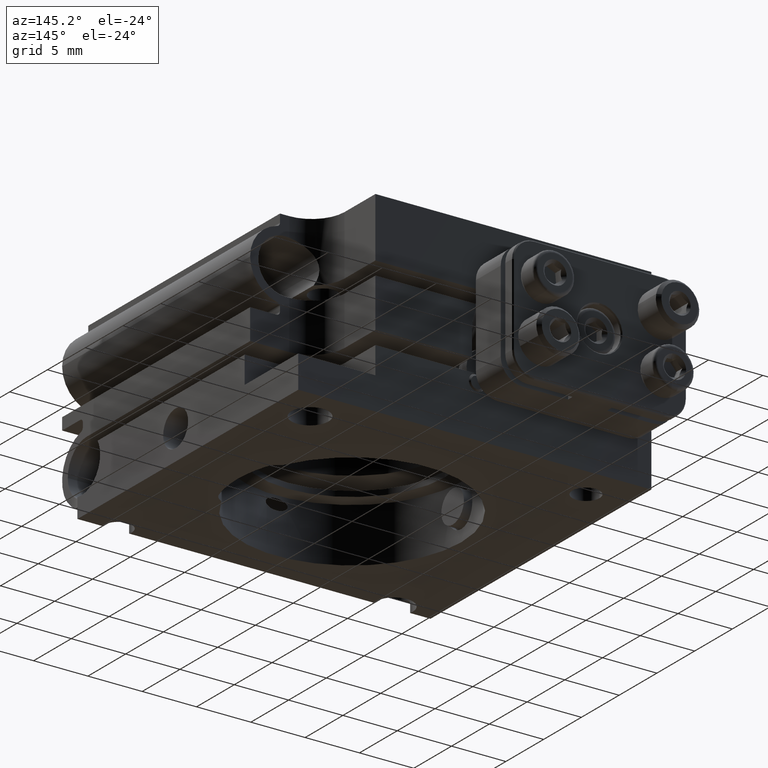
[diagram: clean part render]
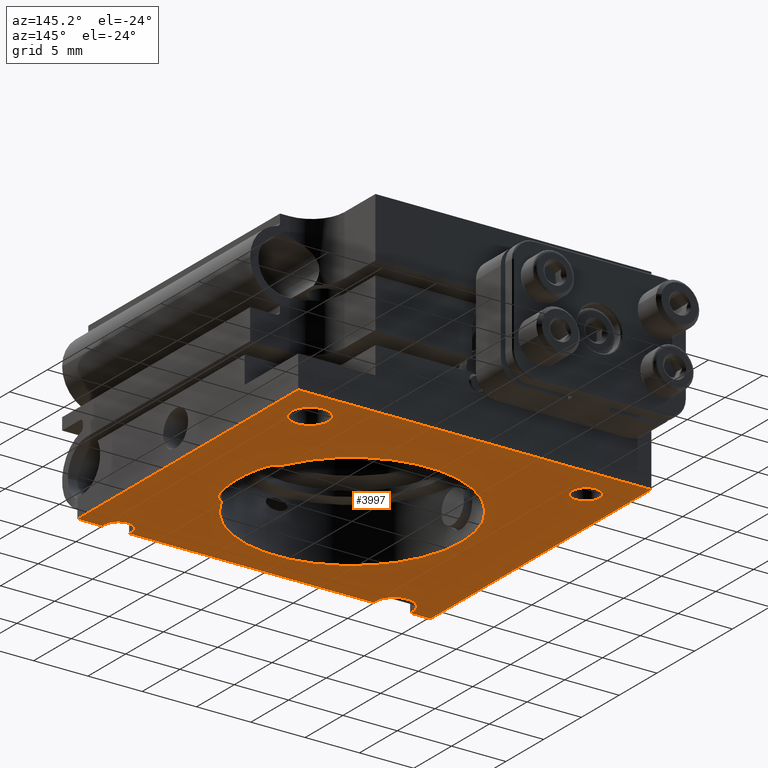
[diagram: same view with one face highlighted and labeled with its STEP entity id]
A machine part, auxiliary view. The second image highlights one B-rep face of the part: STEP entity #3997.
In plain terms, the highlighted planar face has unit normal (-0, 0, 1).
Its self-contained STEP definition (entity closure, byte-faithful):
#48 = EDGE_CURVE ( 'NONE', #1171, #9433, #6801, .T. ) ;
#95 = AXIS2_PLACEMENT_3D ( 'NONE', #8231, #8353, #9204 ) ;
#122 = DIRECTION ( 'NONE',  ( 1.000000000000000000, 1.387778780781460072E-15, 0.000000000000000000 ) ) ;
#125 = AXIS2_PLACEMENT_3D ( 'NONE', #1421, #1298, #8334 ) ;
#138 = LINE ( 'NONE', #7119, #9813 ) ;
#145 = ORIENTED_EDGE ( 'NONE', *, *, #48, .T. ) ;
#208 = EDGE_CURVE ( 'NONE', #5314, #1324, #3505, .T. ) ;
#215 = EDGE_CURVE ( 'NONE', #10657, #3730, #1318, .T. ) ;
#269 = EDGE_CURVE ( 'NONE', #9433, #5703, #4048, .T. ) ;
#291 = CARTESIAN_POINT ( 'NONE',  ( -11.02667994693188547, -13.00000000000002487, -9.000000000000003553 ) ) ;
#414 = CARTESIAN_POINT ( 'NONE',  ( 9.122645823729028436, -4.216613946616318387, -9.000000000000000000 ) ) ;
#517 = VERTEX_POINT ( 'NONE', #10334 ) ;
#656 = CARTESIAN_POINT ( 'NONE',  ( 11.44999999999998863, -12.69999999999997264, -9.000000000000001776 ) ) ;
#760 = CARTESIAN_POINT ( 'NONE',  ( 10.55000000000000071, 1.662281423620015567E-14, -9.000000000000000000 ) ) ;
#762 = FACE_BOUND ( 'NONE', #10475, .T. ) ;
#860 = EDGE_LOOP ( 'NONE', ( #6944, #2074 ) ) ;
#1009 = EDGE_CURVE ( 'NONE', #5327, #5314, #2379, .T. ) ;
#1013 = LINE ( 'NONE', #7764, #2143 ) ;
#1035 = CARTESIAN_POINT ( 'NONE',  ( 9.345510765437564871, -3.982954749063875699, -9.000000000000001776 ) ) ;
#1056 = DIRECTION ( 'NONE',  ( -9.244463733058804623E-33, 5.551115123125772225E-17, 1.000000000000000000 ) ) ;
#1171 = VERTEX_POINT ( 'NONE', #414 ) ;
#1232 = CARTESIAN_POINT ( 'NONE',  ( 9.122645823729026660, 4.216613946616343256, -9.000000000000000000 ) ) ;
#1298 = DIRECTION ( 'NONE',  ( 9.244463733058804623E-33, -5.551115123125772225E-17, -1.000000000000000000 ) ) ;
#1318 = CIRCLE ( 'NONE', #10823, 1.699999999999994849 ) ;
#1324 = VERTEX_POINT ( 'NONE', #2358 ) ;
#1345 = DIRECTION ( 'NONE',  ( 1.000000000000000000, 1.387778780781460072E-15, 0.000000000000000000 ) ) ;
#1355 = CARTESIAN_POINT ( 'NONE',  ( -16.24999999999994316, 16.24999999999995026, -9.000000000000001776 ) ) ;
#1385 = AXIS2_PLACEMENT_3D ( 'NONE', #9399, #1578, #5039 ) ;
#1421 = CARTESIAN_POINT ( 'NONE',  ( 12.69999999999997442, -12.69999999999997087, -9.000000000000001776 ) ) ;
#1537 = CIRCLE ( 'NONE', #5910, 10.55000000000000071 ) ;
#1578 = DIRECTION ( 'NONE',  ( -9.244463733058804623E-33, 5.551115123125772225E-17, 1.000000000000000000 ) ) ;
#1603 = EDGE_CURVE ( 'NONE', #8834, #9404, #1668, .T. ) ;
#1668 = CIRCLE ( 'NONE', #9318, 1.499999999999999556 ) ;
#1671 = VERTEX_POINT ( 'NONE', #10466 ) ;
#1686 = DIRECTION ( 'NONE',  ( -9.244463733058804623E-33, 5.551115123125772225E-17, 1.000000000000000000 ) ) ;
#1733 = CIRCLE ( 'NONE', #7769, 1.249999999999987121 ) ;
#1782 = ORIENTED_EDGE ( 'NONE', *, *, #1009, .T. ) ;
#1892 = EDGE_CURVE ( 'NONE', #7168, #1671, #4025, .T. ) ;
#1921 = DIRECTION ( 'NONE',  ( -9.244463733058804623E-33, 5.551115123125772225E-17, 1.000000000000000000 ) ) ;
#1990 = CARTESIAN_POINT ( 'NONE',  ( 9.345510765437564871, 3.982954749063900568, -9.000000000000000000 ) ) ;
#2017 = ORIENTED_EDGE ( 'NONE', *, *, #3426, .T. ) ;
#2041 = DIRECTION ( 'NONE',  ( -1.000000000000000000, -2.040851148208014704E-15, 0.000000000000000000 ) ) ;
#2074 = ORIENTED_EDGE ( 'NONE', *, *, #3501, .F. ) ;
#2084 = DIRECTION ( 'NONE',  ( -9.244463733058804623E-33, 5.551115123125772225E-17, 1.000000000000000000 ) ) ;
#2112 = EDGE_CURVE ( 'NONE', #1324, #10735, #4940, .T. ) ;
#2143 = VECTOR ( 'NONE', #3623, 1000.000000000000000 ) ;
#2190 = ORIENTED_EDGE ( 'NONE', *, *, #9135, .F. ) ;
#2254 = AXIS2_PLACEMENT_3D ( 'NONE', #4184, #1686, #6835 ) ;
#2263 = AXIS2_PLACEMENT_3D ( 'NONE', #2531, #6021, #6078 ) ;
#2358 = CARTESIAN_POINT ( 'NONE',  ( -14.40000000000002522, -12.70000000000002771, -9.000000000000003553 ) ) ;
#2373 = DIRECTION ( 'NONE',  ( 1.000000000000000000, 1.387778780781460072E-15, 0.000000000000000000 ) ) ;
#2379 = CIRCLE ( 'NONE', #6403, 1.699999999999994849 ) ;
#2459 = EDGE_CURVE ( 'NONE', #11219, #1171, #8899, .T. ) ;
#2488 = EDGE_CURVE ( 'NONE', #3730, #10657, #6715, .T. ) ;
#2502 = CARTESIAN_POINT ( 'NONE',  ( 13.91346610995111988, -12.99999999999997335, -9.000000000000001776 ) ) ;
#2505 = VERTEX_POINT ( 'NONE', #3664 ) ;
#2531 = CARTESIAN_POINT ( 'NONE',  ( 8.320017359752855601E-32, -4.996003610813203446E-16, -9.000000000000000000 ) ) ;
#2579 = ORIENTED_EDGE ( 'NONE', *, *, #11060, .F. ) ;
#2587 = ORIENTED_EDGE ( 'NONE', *, *, #5469, .F. ) ;
#2596 = AXIS2_PLACEMENT_3D ( 'NONE', #8163, #5354, #7207 ) ;
#2694 = ORIENTED_EDGE ( 'NONE', *, *, #8960, .F. ) ;
#2796 = VERTEX_POINT ( 'NONE', #760 ) ;
#2798 = CIRCLE ( 'NONE', #5355, 1.249999999999987121 ) ;
#2833 = CARTESIAN_POINT ( 'NONE',  ( -12.70000000000003126, -12.70000000000002416, -9.000000000000003553 ) ) ;
#2837 = CARTESIAN_POINT ( 'NONE',  ( 8.320017359752855601E-32, -4.996003610813203446E-16, -9.000000000000000000 ) ) ;
#2880 = CARTESIAN_POINT ( 'NONE',  ( 11.00000000000003197, 12.70000000000002238, -9.000000000000003553 ) ) ;
#2904 = DIRECTION ( 'NONE',  ( -1.000000000000000000, -2.040851148208014704E-15, 0.000000000000000000 ) ) ;
#2942 = CARTESIAN_POINT ( 'NONE',  ( -12.69999999999997087, 12.69999999999997442, -9.000000000000001776 ) ) ;
#3119 = CARTESIAN_POINT ( 'NONE',  ( 12.69999999999997442, -12.69999999999997087, -9.000000000000001776 ) ) ;
#3176 = CIRCLE ( 'NONE', #7953, 1.249999999999987121 ) ;
#3203 = ORIENTED_EDGE ( 'NONE', *, *, #2112, .T. ) ;
#3217 = ORIENTED_EDGE ( 'NONE', *, *, #215, .T. ) ;
#3269 = CARTESIAN_POINT ( 'NONE',  ( 11.48653389004883074, -12.99999999999997335, -9.000000000000001776 ) ) ;
#3287 = ORIENTED_EDGE ( 'NONE', *, *, #208, .T. ) ;
#3383 = PLANE ( 'NONE',  #2263 ) ;
#3419 = CARTESIAN_POINT ( 'NONE',  ( 14.40000000000002167, 12.70000000000002771, -9.000000000000003553 ) ) ;
#3426 = EDGE_CURVE ( 'NONE', #2796, #8834, #1537, .T. ) ;
#3501 = EDGE_CURVE ( 'NONE', #7402, #2505, #2798, .T. ) ;
#3505 = CIRCLE ( 'NONE', #6433, 1.699999999999994849 ) ;
#3551 = CIRCLE ( 'NONE', #95, 0.5000000000000004441 ) ;
#3597 = EDGE_CURVE ( 'NONE', #5703, #2796, #7200, .T. ) ;
#3623 = DIRECTION ( 'NONE',  ( 1.000000000000000000, 1.609823385706476984E-15, -8.011868568650903338E-32 ) ) ;
#3664 = CARTESIAN_POINT ( 'NONE',  ( -11.44999999999998508, 12.69999999999997620, -9.000000000000001776 ) ) ;
#3730 = VERTEX_POINT ( 'NONE', #2880 ) ;
#3855 = CARTESIAN_POINT ( 'NONE',  ( -16.24999999999994316, 16.24999999999995026, -9.000000000000001776 ) ) ;
#3888 = CARTESIAN_POINT ( 'NONE',  ( 10.08663544534702972, 3.092294519069786585, -9.000000000000000000 ) ) ;
#3965 = VERTEX_POINT ( 'NONE', #656 ) ;
#3966 = ORIENTED_EDGE ( 'NONE', *, *, #2459, .T. ) ;
#3997 = ADVANCED_FACE ( 'NONE', ( #762, #9326, #4227, #6711 ), #3383, .F. ) ;
#4006 = EDGE_LOOP ( 'NONE', ( #6061, #1782, #3287, #3203, #2579, #9684, #2587, #2694, #2190, #5928, #6101, #10911 ) ) ;
#4025 = LINE ( 'NONE', #3855, #7519 ) ;
#4048 = CIRCLE ( 'NONE', #2596, 1.499999999999999556 ) ;
#4098 = DIRECTION ( 'NONE',  ( -1.000000000000000000, -1.734723475976807686E-15, 0.000000000000000000 ) ) ;
#4148 = CARTESIAN_POINT ( 'NONE',  ( 16.25000000000006040, 16.25000000000005684, -9.000000000000001776 ) ) ;
#4184 = CARTESIAN_POINT ( 'NONE',  ( 8.320017359752855601E-32, -4.996003610813203446E-16, -9.000000000000000000 ) ) ;
#4214 = CARTESIAN_POINT ( 'NONE',  ( 9.576508800033952440, -4.426395735005190346, -9.000000000000001776 ) ) ;
#4227 = FACE_BOUND ( 'NONE', #6626, .T. ) ;
#4255 = EDGE_CURVE ( 'NONE', #9404, #11219, #3551, .T. ) ;
#4397 = EDGE_CURVE ( 'NONE', #11336, #4697, #3176, .T. ) ;
#4486 = DIRECTION ( 'NONE',  ( -1.000000000000000000, -1.609823385706476786E-15, 0.000000000000000000 ) ) ;
#4656 = VECTOR ( 'NONE', #5243, 1000.000000000000000 ) ;
#4697 = VERTEX_POINT ( 'NONE', #2502 ) ;
#4710 = EDGE_CURVE ( 'NONE', #5899, #3965, #1733, .T. ) ;
#4727 = VERTEX_POINT ( 'NONE', #4148 ) ;
#4927 = DIRECTION ( 'NONE',  ( 9.244463733058804623E-33, -5.551115123125772225E-17, -1.000000000000000000 ) ) ;
#4940 = CIRCLE ( 'NONE', #9332, 1.699999999999994849 ) ;
#5039 = DIRECTION ( 'NONE',  ( -1.000000000000000000, -2.040851148208014704E-15, 0.000000000000000000 ) ) ;
#5183 = CARTESIAN_POINT ( 'NONE',  ( 12.69999999999997442, -12.69999999999997087, -9.000000000000001776 ) ) ;
#5243 = DIRECTION ( 'NONE',  ( 1.000000000000000000, 1.609823385706476984E-15, -8.011868568650903338E-32 ) ) ;
#5246 = DIRECTION ( 'NONE',  ( 9.244463733058804623E-33, -5.551115123125772225E-17, -1.000000000000000000 ) ) ;
#5314 = VERTEX_POINT ( 'NONE', #10763 ) ;
#5327 = VERTEX_POINT ( 'NONE', #291 ) ;
#5354 = DIRECTION ( 'NONE',  ( -9.244463733058804623E-33, 5.551115123125772225E-17, 1.000000000000000000 ) ) ;
#5355 = AXIS2_PLACEMENT_3D ( 'NONE', #6666, #4927, #1345 ) ;
#5469 = EDGE_CURVE ( 'NONE', #4727, #7168, #9996, .T. ) ;
#5582 = CARTESIAN_POINT ( 'NONE',  ( 16.25000000000006040, 16.25000000000005684, -9.000000000000001776 ) ) ;
#5632 = DIRECTION ( 'NONE',  ( -1.831867990631508292E-15, -1.000000000000000000, 5.551115123125782702E-17 ) ) ;
#5703 = VERTEX_POINT ( 'NONE', #7347 ) ;
#5719 = VECTOR ( 'NONE', #8396, 1000.000000000000000 ) ;
#5899 = VERTEX_POINT ( 'NONE', #3269 ) ;
#5910 = AXIS2_PLACEMENT_3D ( 'NONE', #2837, #2084, #4486 ) ;
#5928 = ORIENTED_EDGE ( 'NONE', *, *, #4397, .F. ) ;
#6009 = LINE ( 'NONE', #8746, #4656 ) ;
#6021 = DIRECTION ( 'NONE',  ( -9.244463733058545985E-33, 5.551115123125772225E-17, 1.000000000000000000 ) ) ;
#6061 = ORIENTED_EDGE ( 'NONE', *, *, #7912, .F. ) ;
#6078 = DIRECTION ( 'NONE',  ( -1.000000000000000000, -1.609823385706476984E-15, 8.011868568650903338E-32 ) ) ;
#6101 = ORIENTED_EDGE ( 'NONE', *, *, #8193, .F. ) ;
#6149 = CIRCLE ( 'NONE', #125, 1.249999999999987121 ) ;
#6385 = CARTESIAN_POINT ( 'NONE',  ( -13.94999999999995843, 12.69999999999997264, -9.000000000000001776 ) ) ;
#6400 = CARTESIAN_POINT ( 'NONE',  ( 12.70000000000002771, 12.70000000000002593, -9.000000000000003553 ) ) ;
#6403 = AXIS2_PLACEMENT_3D ( 'NONE', #10206, #1056, #7977 ) ;
#6433 = AXIS2_PLACEMENT_3D ( 'NONE', #10757, #9876, #2904 ) ;
#6512 = CIRCLE ( 'NONE', #7434, 1.249999999999987121 ) ;
#6554 = ORIENTED_EDGE ( 'NONE', *, *, #269, .T. ) ;
#6626 = EDGE_LOOP ( 'NONE', ( #3966, #145, #6554, #8022, #2017, #7283, #8977 ) ) ;
#6666 = CARTESIAN_POINT ( 'NONE',  ( -12.69999999999997087, 12.69999999999997442, -9.000000000000001776 ) ) ;
#6711 = FACE_OUTER_BOUND ( 'NONE', #4006, .T. ) ;
#6715 = CIRCLE ( 'NONE', #1385, 1.699999999999994849 ) ;
#6801 = CIRCLE ( 'NONE', #8803, 0.5000000000000004441 ) ;
#6835 = DIRECTION ( 'NONE',  ( -1.000000000000000000, -1.609823385706476786E-15, 0.000000000000000000 ) ) ;
#6944 = ORIENTED_EDGE ( 'NONE', *, *, #10024, .F. ) ;
#6949 = DIRECTION ( 'NONE',  ( -1.000000000000000000, -1.609823385706476786E-15, 0.000000000000000000 ) ) ;
#7119 = CARTESIAN_POINT ( 'NONE',  ( -16.25000000000005329, -13.00000000000002309, -9.000000000000000000 ) ) ;
#7168 = VERTEX_POINT ( 'NONE', #1355 ) ;
#7200 = CIRCLE ( 'NONE', #2254, 10.55000000000000071 ) ;
#7207 = DIRECTION ( 'NONE',  ( -1.000000000000000000, -1.734723475976807686E-15, 0.000000000000000000 ) ) ;
#7283 = ORIENTED_EDGE ( 'NONE', *, *, #1603, .T. ) ;
#7347 = CARTESIAN_POINT ( 'NONE',  ( 10.08663544534702972, -3.092294519069746173, -9.000000000000000000 ) ) ;
#7402 = VERTEX_POINT ( 'NONE', #6385 ) ;
#7434 = AXIS2_PLACEMENT_3D ( 'NONE', #2942, #9921, #2373 ) ;
#7441 = DIRECTION ( 'NONE',  ( -9.244463733058804623E-33, 5.551115123125772225E-17, 1.000000000000000000 ) ) ;
#7519 = VECTOR ( 'NONE', #5632, 1000.000000000000000 ) ;
#7554 = CARTESIAN_POINT ( 'NONE',  ( 8.652516661648402163, 2.652631791239955295, -9.000000000000000000 ) ) ;
#7764 = CARTESIAN_POINT ( 'NONE',  ( -16.25000000000005329, -13.00000000000002309, -9.000000000000000000 ) ) ;
#7769 = AXIS2_PLACEMENT_3D ( 'NONE', #3119, #9480, #11102 ) ;
#7837 = DIRECTION ( 'NONE',  ( 9.244463733058804623E-33, -5.551115123125772225E-17, -1.000000000000000000 ) ) ;
#7912 = EDGE_CURVE ( 'NONE', #5327, #5899, #6009, .T. ) ;
#7953 = AXIS2_PLACEMENT_3D ( 'NONE', #5183, #5246, #122 ) ;
#7977 = DIRECTION ( 'NONE',  ( -1.000000000000000000, -2.040851148208014704E-15, 0.000000000000000000 ) ) ;
#8022 = ORIENTED_EDGE ( 'NONE', *, *, #3597, .T. ) ;
#8147 = DIRECTION ( 'NONE',  ( -1.000000000000000000, -2.040851148208014704E-15, 0.000000000000000000 ) ) ;
#8163 = CARTESIAN_POINT ( 'NONE',  ( 8.652516661648402163, -2.652631791239928649, -9.000000000000001776 ) ) ;
#8193 = EDGE_CURVE ( 'NONE', #3965, #11336, #6149, .T. ) ;
#8231 = CARTESIAN_POINT ( 'NONE',  ( 9.576508800033952440, 4.426395735005216103, -9.000000000000000000 ) ) ;
#8334 = DIRECTION ( 'NONE',  ( 1.000000000000000000, 1.387778780781460072E-15, 0.000000000000000000 ) ) ;
#8353 = DIRECTION ( 'NONE',  ( 9.244463733058804623E-33, -5.551115123125772225E-17, -1.000000000000000000 ) ) ;
#8396 = DIRECTION ( 'NONE',  ( -1.000000000000000000, -1.716575599612742051E-15, 8.604462397693132028E-32 ) ) ;
#8426 = CARTESIAN_POINT ( 'NONE',  ( 13.94999999999996199, -12.69999999999997087, -9.000000000000001776 ) ) ;
#8470 = ORIENTED_EDGE ( 'NONE', *, *, #2488, .T. ) ;
#8523 = VECTOR ( 'NONE', #10373, 1000.000000000000000 ) ;
#8705 = LINE ( 'NONE', #10248, #8523 ) ;
#8746 = CARTESIAN_POINT ( 'NONE',  ( -16.25000000000005329, -13.00000000000002309, -9.000000000000000000 ) ) ;
#8797 = DIRECTION ( 'NONE',  ( -9.244463733058804623E-33, 5.551115123125772225E-17, 1.000000000000000000 ) ) ;
#8803 = AXIS2_PLACEMENT_3D ( 'NONE', #4214, #7837, #11340 ) ;
#8834 = VERTEX_POINT ( 'NONE', #3888 ) ;
#8850 = CARTESIAN_POINT ( 'NONE',  ( -14.37332005306817706, -13.00000000000002487, -9.000000000000003553 ) ) ;
#8899 = CIRCLE ( 'NONE', #10741, 10.05000000000000071 ) ;
#8960 = EDGE_CURVE ( 'NONE', #517, #4727, #8705, .T. ) ;
#8977 = ORIENTED_EDGE ( 'NONE', *, *, #4255, .T. ) ;
#9135 = EDGE_CURVE ( 'NONE', #4697, #517, #138, .T. ) ;
#9204 = DIRECTION ( 'NONE',  ( -1.000000000000000000, -1.734723475976805517E-15, 0.000000000000000000 ) ) ;
#9262 = DIRECTION ( 'NONE',  ( 1.000000000000000000, 1.609823385706476984E-15, -8.011868568650903338E-32 ) ) ;
#9318 = AXIS2_PLACEMENT_3D ( 'NONE', #7554, #7441, #4098 ) ;
#9326 = FACE_BOUND ( 'NONE', #860, .T. ) ;
#9332 = AXIS2_PLACEMENT_3D ( 'NONE', #2833, #1921, #8147 ) ;
#9335 = CARTESIAN_POINT ( 'NONE',  ( 8.320017359752855601E-32, -4.996003610813203446E-16, -9.000000000000000000 ) ) ;
#9399 = CARTESIAN_POINT ( 'NONE',  ( 12.70000000000002771, 12.70000000000002593, -9.000000000000003553 ) ) ;
#9404 = VERTEX_POINT ( 'NONE', #1990 ) ;
#9433 = VERTEX_POINT ( 'NONE', #1035 ) ;
#9480 = DIRECTION ( 'NONE',  ( 9.244463733058804623E-33, -5.551115123125772225E-17, -1.000000000000000000 ) ) ;
#9684 = ORIENTED_EDGE ( 'NONE', *, *, #1892, .F. ) ;
#9813 = VECTOR ( 'NONE', #9262, 1000.000000000000000 ) ;
#9876 = DIRECTION ( 'NONE',  ( -9.244463733058804623E-33, 5.551115123125772225E-17, 1.000000000000000000 ) ) ;
#9921 = DIRECTION ( 'NONE',  ( 9.244463733058804623E-33, -5.551115123125772225E-17, -1.000000000000000000 ) ) ;
#9996 = LINE ( 'NONE', #5582, #5719 ) ;
#10024 = EDGE_CURVE ( 'NONE', #2505, #7402, #6512, .T. ) ;
#10206 = CARTESIAN_POINT ( 'NONE',  ( -12.70000000000003126, -12.70000000000002416, -9.000000000000003553 ) ) ;
#10248 = CARTESIAN_POINT ( 'NONE',  ( 16.25000000000006040, 16.25000000000005684, -9.000000000000001776 ) ) ;
#10334 = CARTESIAN_POINT ( 'NONE',  ( 16.24999999999995026, -12.99999999999997513, -9.000000000000000000 ) ) ;
#10373 = DIRECTION ( 'NONE',  ( 1.831867990631508292E-15, 1.000000000000000000, -5.551115123125782702E-17 ) ) ;
#10466 = CARTESIAN_POINT ( 'NONE',  ( -16.25000000000005329, -13.00000000000002132, -9.000000000000000000 ) ) ;
#10475 = EDGE_LOOP ( 'NONE', ( #8470, #3217 ) ) ;
#10657 = VERTEX_POINT ( 'NONE', #3419 ) ;
#10735 = VERTEX_POINT ( 'NONE', #8850 ) ;
#10741 = AXIS2_PLACEMENT_3D ( 'NONE', #9335, #11312, #6949 ) ;
#10757 = CARTESIAN_POINT ( 'NONE',  ( -12.70000000000003126, -12.70000000000002416, -9.000000000000003553 ) ) ;
#10763 = CARTESIAN_POINT ( 'NONE',  ( -11.00000000000003553, -12.70000000000002416, -9.000000000000003553 ) ) ;
#10823 = AXIS2_PLACEMENT_3D ( 'NONE', #6400, #8797, #2041 ) ;
#10911 = ORIENTED_EDGE ( 'NONE', *, *, #4710, .F. ) ;
#11060 = EDGE_CURVE ( 'NONE', #1671, #10735, #1013, .T. ) ;
#11102 = DIRECTION ( 'NONE',  ( 1.000000000000000000, 1.387778780781460072E-15, 0.000000000000000000 ) ) ;
#11219 = VERTEX_POINT ( 'NONE', #1232 ) ;
#11312 = DIRECTION ( 'NONE',  ( -9.244463733058804623E-33, 5.551115123125772225E-17, 1.000000000000000000 ) ) ;
#11336 = VERTEX_POINT ( 'NONE', #8426 ) ;
#11340 = DIRECTION ( 'NONE',  ( -1.000000000000000000, 0.000000000000000000, 0.000000000000000000 ) ) ;